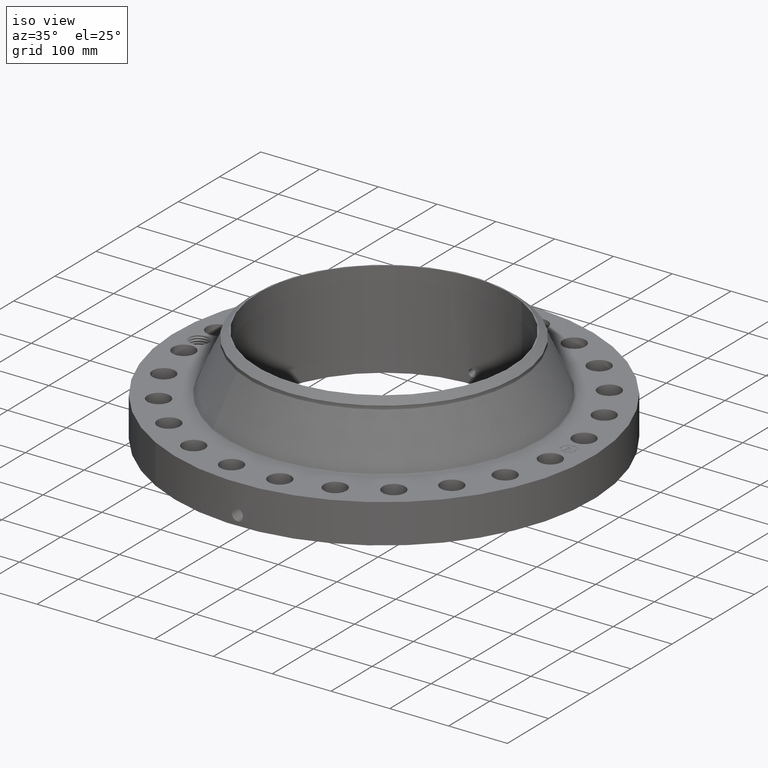
[diagram: clean part render]
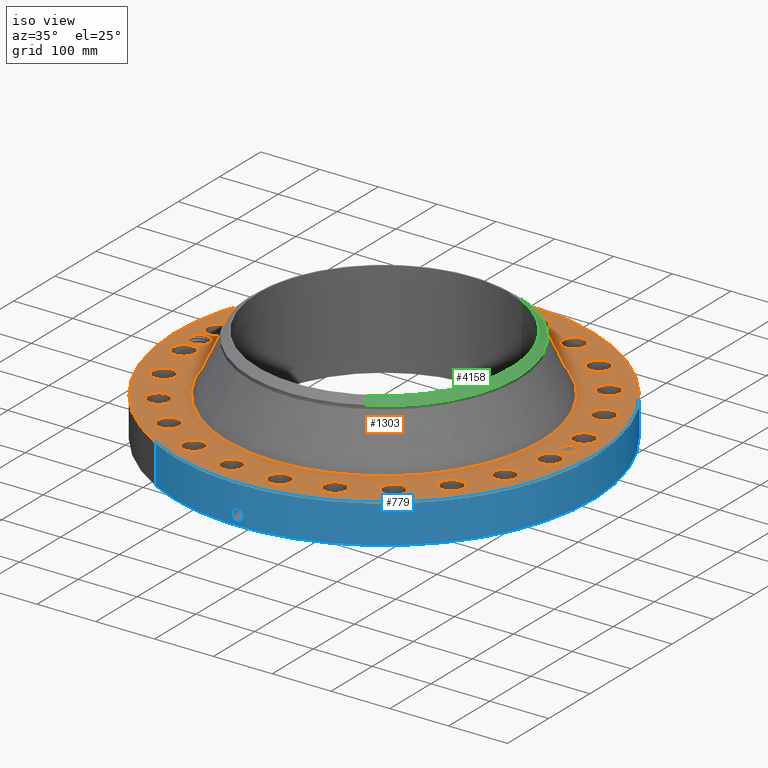
[diagram: same view with three faces highlighted in distinct colors, each labeled with its STEP entity id]
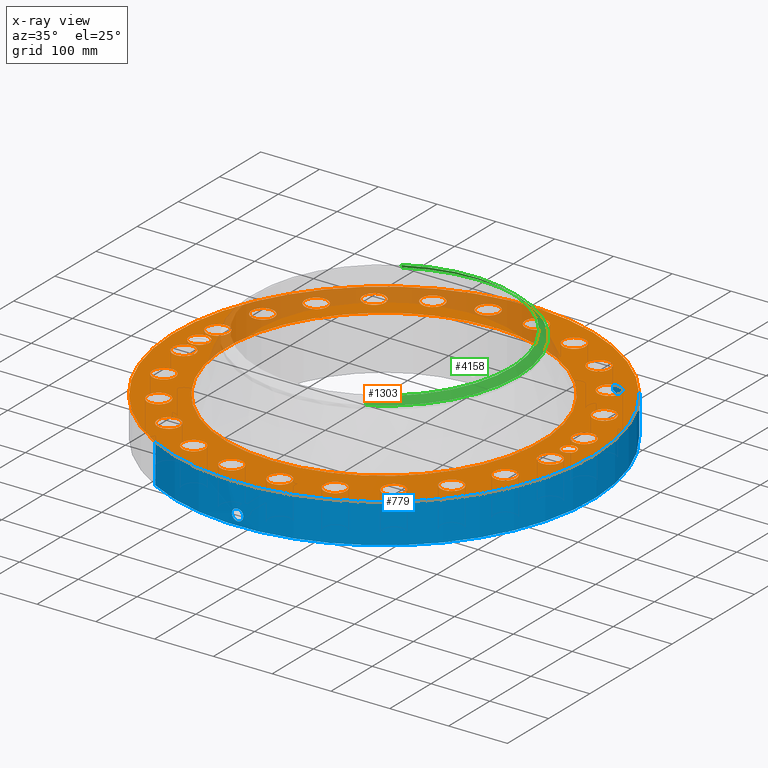
[diagram: x-ray of the same camera — body ghosted, the three highlighted faces saturated]
A machine part, iso view with three faces highlighted in distinct colors.
The next image is the same camera in x-ray (body ghosted, the three faces saturated) — at least one of them is partly hidden behind the body in this view.
Their STEP definitions:

[orange] entity #1303 — the highlighted planar face has unit normal (0, 0, -1).
#58=AXIS2_PLACEMENT_3D('Circle Axis2P3D',#56,#57,$) ;
#683=AXIS2_PLACEMENT_3D('Circle Axis2P3D',#681,#682,$) ;
#783=AXIS2_PLACEMENT_3D('Plane Axis2P3D',#780,#781,#782) ;
#819=AXIS2_PLACEMENT_3D('Circle Axis2P3D',#817,#818,$) ;
#826=AXIS2_PLACEMENT_3D('Circle Axis2P3D',#824,#825,$) ;
#837=AXIS2_PLACEMENT_3D('Circle Axis2P3D',#835,#836,$) ;
#846=AXIS2_PLACEMENT_3D('Circle Axis2P3D',#844,#845,$) ;
#855=AXIS2_PLACEMENT_3D('Circle Axis2P3D',#853,#854,$) ;
#864=AXIS2_PLACEMENT_3D('Circle Axis2P3D',#862,#863,$) ;
#873=AXIS2_PLACEMENT_3D('Circle Axis2P3D',#871,#872,$) ;
#882=AXIS2_PLACEMENT_3D('Circle Axis2P3D',#880,#881,$) ;
#891=AXIS2_PLACEMENT_3D('Circle Axis2P3D',#889,#890,$) ;
#900=AXIS2_PLACEMENT_3D('Circle Axis2P3D',#898,#899,$) ;
#909=AXIS2_PLACEMENT_3D('Circle Axis2P3D',#907,#908,$) ;
#918=AXIS2_PLACEMENT_3D('Circle Axis2P3D',#916,#917,$) ;
#927=AXIS2_PLACEMENT_3D('Circle Axis2P3D',#925,#926,$) ;
#936=AXIS2_PLACEMENT_3D('Circle Axis2P3D',#934,#935,$) ;
#945=AXIS2_PLACEMENT_3D('Circle Axis2P3D',#943,#944,$) ;
#954=AXIS2_PLACEMENT_3D('Circle Axis2P3D',#952,#953,$) ;
#963=AXIS2_PLACEMENT_3D('Circle Axis2P3D',#961,#962,$) ;
#972=AXIS2_PLACEMENT_3D('Circle Axis2P3D',#970,#971,$) ;
#981=AXIS2_PLACEMENT_3D('Circle Axis2P3D',#979,#980,$) ;
#990=AXIS2_PLACEMENT_3D('Circle Axis2P3D',#988,#989,$) ;
#999=AXIS2_PLACEMENT_3D('Circle Axis2P3D',#997,#998,$) ;
#1008=AXIS2_PLACEMENT_3D('Circle Axis2P3D',#1006,#1007,$) ;
#1017=AXIS2_PLACEMENT_3D('Circle Axis2P3D',#1015,#1016,$) ;
#1026=AXIS2_PLACEMENT_3D('Circle Axis2P3D',#1024,#1025,$) ;
#1035=AXIS2_PLACEMENT_3D('Circle Axis2P3D',#1033,#1034,$) ;
#1044=AXIS2_PLACEMENT_3D('Circle Axis2P3D',#1042,#1043,$) ;
#1053=AXIS2_PLACEMENT_3D('Circle Axis2P3D',#1051,#1052,$) ;
#1062=AXIS2_PLACEMENT_3D('Circle Axis2P3D',#1060,#1061,$) ;
#1071=AXIS2_PLACEMENT_3D('Circle Axis2P3D',#1069,#1070,$) ;
#1080=AXIS2_PLACEMENT_3D('Circle Axis2P3D',#1078,#1079,$) ;
#1089=AXIS2_PLACEMENT_3D('Circle Axis2P3D',#1087,#1088,$) ;
#1098=AXIS2_PLACEMENT_3D('Circle Axis2P3D',#1096,#1097,$) ;
#1107=AXIS2_PLACEMENT_3D('Circle Axis2P3D',#1105,#1106,$) ;
#1116=AXIS2_PLACEMENT_3D('Circle Axis2P3D',#1114,#1115,$) ;
#1125=AXIS2_PLACEMENT_3D('Circle Axis2P3D',#1123,#1124,$) ;
#1134=AXIS2_PLACEMENT_3D('Circle Axis2P3D',#1132,#1133,$) ;
#1143=AXIS2_PLACEMENT_3D('Circle Axis2P3D',#1141,#1142,$) ;
#1152=AXIS2_PLACEMENT_3D('Circle Axis2P3D',#1150,#1151,$) ;
#1161=AXIS2_PLACEMENT_3D('Circle Axis2P3D',#1159,#1160,$) ;
#1170=AXIS2_PLACEMENT_3D('Circle Axis2P3D',#1168,#1169,$) ;
#1179=AXIS2_PLACEMENT_3D('Circle Axis2P3D',#1177,#1178,$) ;
#1188=AXIS2_PLACEMENT_3D('Circle Axis2P3D',#1186,#1187,$) ;
#1197=AXIS2_PLACEMENT_3D('Circle Axis2P3D',#1195,#1196,$) ;
#1206=AXIS2_PLACEMENT_3D('Circle Axis2P3D',#1204,#1205,$) ;
#1215=AXIS2_PLACEMENT_3D('Circle Axis2P3D',#1213,#1214,$) ;
#1224=AXIS2_PLACEMENT_3D('Circle Axis2P3D',#1222,#1223,$) ;
#1233=AXIS2_PLACEMENT_3D('Circle Axis2P3D',#1231,#1232,$) ;
#1242=AXIS2_PLACEMENT_3D('Circle Axis2P3D',#1240,#1241,$) ;
#1251=AXIS2_PLACEMENT_3D('Circle Axis2P3D',#1249,#1250,$) ;
#1260=AXIS2_PLACEMENT_3D('Circle Axis2P3D',#1258,#1259,$) ;
#1269=AXIS2_PLACEMENT_3D('Circle Axis2P3D',#1267,#1268,$) ;
#1278=AXIS2_PLACEMENT_3D('Circle Axis2P3D',#1276,#1277,$) ;
#1287=AXIS2_PLACEMENT_3D('Circle Axis2P3D',#1285,#1286,$) ;
#1296=AXIS2_PLACEMENT_3D('Circle Axis2P3D',#1294,#1295,$) ;
#53=CARTESIAN_POINT('Vertex',(-6.71195754049,-12.2861558665,2.87000000001)) ;
#56=CARTESIAN_POINT('Axis2P3D Location',(0.,0.,2.87000000001)) ;
#60=CARTESIAN_POINT('Vertex',(6.71195754049,12.2861558665,2.87000000001)) ;
#681=CARTESIAN_POINT('Axis2P3D Location',(0.,0.,2.87000000001)) ;
#780=CARTESIAN_POINT('Axis2P3D Location',(0.,14.0000000001,2.87000000001)) ;
#790=CARTESIAN_POINT('Control Point',(-11.6875,0.,2.87000000001)) ;
#791=CARTESIAN_POINT('Control Point',(-11.6898638325,0.0644948882573,2.87000000001)) ;
#792=CARTESIAN_POINT('Control Point',(-11.6997958713,0.128582122111,2.87000000001)) ;
#793=CARTESIAN_POINT('Control Point',(-11.7172355436,0.191066483238,2.87000000001)) ;
#794=CARTESIAN_POINT('Control Point',(-11.7546991262,0.282013972349,2.87000000001)) ;
#795=CARTESIAN_POINT('Control Point',(-11.8073694169,0.36411728319,2.87000000001)) ;
#796=CARTESIAN_POINT('Control Point',(-11.8271741957,0.391133149727,2.87000000001)) ;
#797=CARTESIAN_POINT('Control Point',(-11.848583645,0.41681964059,2.87000000001)) ;
#798=CARTESIAN_POINT('Control Point',(-11.8714774441,0.441053201132,2.87000000001)) ;
#799=CARTESIAN_POINT('Vertex',(-11.6875,0.,2.87000000001)) ;
#801=CARTESIAN_POINT('Vertex',(-11.8714774441,0.441053201132,2.87000000001)) ;
#805=CARTESIAN_POINT('Control Point',(-11.6875,0.,2.87000000001)) ;
#806=CARTESIAN_POINT('Control Point',(-11.6898644905,-0.0645128403221,2.87000000001)) ;
#807=CARTESIAN_POINT('Control Point',(-11.6998014153,-0.128617797519,2.87000000001)) ;
#808=CARTESIAN_POINT('Control Point',(-11.717239938,-0.191095640866,2.87000000001)) ;
#809=CARTESIAN_POINT('Control Point',(-11.7547159746,-0.282071343012,2.87000000001)) ;
#810=CARTESIAN_POINT('Control Point',(-11.8073781772,-0.364153681751,2.87000000001)) ;
#811=CARTESIAN_POINT('Control Point',(-11.8272078669,-0.391195038993,2.87000000001)) ;
#812=CARTESIAN_POINT('Control Point',(-11.8486415572,-0.416899488124,2.87000000001)) ;
#813=CARTESIAN_POINT('Control Point',(-11.8715578122,-0.441144935554,2.87000000001)) ;
#814=CARTESIAN_POINT('Vertex',(-11.8715578122,-0.441144935554,2.87000000001)) ;
#817=CARTESIAN_POINT('Axis2P3D Location',(-12.375,-1.1189649382E-014,2.87000000001)) ;
#821=CARTESIAN_POINT('Vertex',(-12.9624318274,0.320915469904,2.87000000001)) ;
#824=CARTESIAN_POINT('Axis2P3D Location',(-12.375,-1.1189649382E-014,2.87000000001)) ;
#835=CARTESIAN_POINT('Axis2P3D Location',(12.2691301595,-1.61526162873,2.87000000001)) ;
#839=CARTESIAN_POINT('Vertex',(11.6109432381,-1.25569247478,2.87000000001)) ;
#841=CARTESIAN_POINT('Vertex',(12.927317081,-1.97483078268,2.87000000001)) ;
#844=CARTESIAN_POINT('Axis2P3D Location',(12.2691301595,-1.61526162873,2.87000000001)) ;
#853=CARTESIAN_POINT('Axis2P3D Location',(0.,0.,2.87000000001)) ;
#857=CARTESIAN_POINT('Vertex',(-5.07088683726,-9.2821960938,2.87000000001)) ;
#859=CARTESIAN_POINT('Vertex',(5.07088683726,9.2821960938,2.87000000001)) ;
#862=CARTESIAN_POINT('Axis2P3D Location',(0.,0.,2.87000000001)) ;
#871=CARTESIAN_POINT('Axis2P3D Location',(11.4330092149,-4.73570747554,2.87000000001)) ;
#875=CARTESIAN_POINT('Vertex',(11.9757056157,-5.25337591818,2.87000000001)) ;
#877=CARTESIAN_POINT('Vertex',(10.890312814,-4.21803903289,2.87000000001)) ;
#880=CARTESIAN_POINT('Axis2P3D Location',(11.4330092149,-4.73570747554,2.87000000001)) ;
#889=CARTESIAN_POINT('Axis2P3D Location',(9.81774758614,-7.53342268401,2.87000000001)) ;
#893=CARTESIAN_POINT('Vertex',(10.2079696036,-8.17391216647,2.87000000001)) ;
#895=CARTESIAN_POINT('Vertex',(9.42752556873,-6.89293320156,2.87000000001)) ;
#898=CARTESIAN_POINT('Axis2P3D Location',(9.81774758614,-7.53342268401,2.87000000001)) ;
#907=CARTESIAN_POINT('Axis2P3D Location',(7.53342268401,-9.81774758614,2.87000000001)) ;
#911=CARTESIAN_POINT('Vertex',(7.74457733237,-10.5374098086,2.87000000001)) ;
#913=CARTESIAN_POINT('Vertex',(7.32226803566,-9.09808536365,2.87000000001)) ;
#916=CARTESIAN_POINT('Axis2P3D Location',(7.53342268401,-9.81774758614,2.87000000001)) ;
#925=CARTESIAN_POINT('Axis2P3D Location',(4.73570747554,-11.4330092149,2.87000000001)) ;
#929=CARTESIAN_POINT('Vertex',(4.75340491451,-12.1828003862,2.87000000001)) ;
#931=CARTESIAN_POINT('Vertex',(4.71801003657,-10.6832180435,2.87000000001)) ;
#934=CARTESIAN_POINT('Axis2P3D Location',(4.73570747554,-11.4330092149,2.87000000001)) ;
#943=CARTESIAN_POINT('Axis2P3D Location',(1.61526162873,-12.2691301595,2.87000000001)) ;
#947=CARTESIAN_POINT('Vertex',(1.43829580709,-12.9979532506,2.87000000001)) ;
#949=CARTESIAN_POINT('Vertex',(1.79222745037,-11.5403070685,2.87000000001)) ;
#952=CARTESIAN_POINT('Axis2P3D Location',(1.61526162873,-12.2691301595,2.87000000001)) ;
#961=CARTESIAN_POINT('Axis2P3D Location',(-1.61526162873,-12.2691301595,2.87000000001)) ;
#965=CARTESIAN_POINT('Vertex',(-1.97483078268,-12.927317081,2.87000000001)) ;
#967=CARTESIAN_POINT('Vertex',(-1.25569247478,-11.6109432381,2.87000000001)) ;
#970=CARTESIAN_POINT('Axis2P3D Location',(-1.61526162873,-12.2691301595,2.87000000001)) ;
#979=CARTESIAN_POINT('Axis2P3D Location',(-4.73570747554,-11.4330092149,2.87000000001)) ;
#983=CARTESIAN_POINT('Vertex',(-5.25337591818,-11.9757056157,2.87000000001)) ;
#985=CARTESIAN_POINT('Vertex',(-4.21803903289,-10.890312814,2.87000000001)) ;
#988=CARTESIAN_POINT('Axis2P3D Location',(-4.73570747554,-11.4330092149,2.87000000001)) ;
#997=CARTESIAN_POINT('Axis2P3D Location',(-7.53342268401,-9.81774758614,2.87000000001)) ;
#1001=CARTESIAN_POINT('Vertex',(-8.17391216647,-10.2079696036,2.87000000001)) ;
#1003=CARTESIAN_POINT('Vertex',(-6.89293320156,-9.42752556873,2.87000000001)) ;
#1006=CARTESIAN_POINT('Axis2P3D Location',(-7.53342268401,-9.81774758614,2.87000000001)) ;
#1015=CARTESIAN_POINT('Axis2P3D Location',(-9.81774758614,-7.53342268401,2.87000000001)) ;
#1019=CARTESIAN_POINT('Vertex',(-10.5374098086,-7.74457733237,2.87000000001)) ;
#1021=CARTESIAN_POINT('Vertex',(-9.09808536365,-7.32226803566,2.87000000001)) ;
#1024=CARTESIAN_POINT('Axis2P3D Location',(-9.81774758614,-7.53342268401,2.87000000001)) ;
#1033=CARTESIAN_POINT('Axis2P3D Location',(-11.4330092149,-4.73570747554,2.87000000001)) ;
#1037=CARTESIAN_POINT('Vertex',(-12.1828003862,-4.75340491451,2.87000000001)) ;
#1039=CARTESIAN_POINT('Vertex',(-10.6832180435,-4.71801003657,2.87000000001)) ;
#1042=CARTESIAN_POINT('Axis2P3D Location',(-11.4330092149,-4.73570747554,2.87000000001)) ;
#1051=CARTESIAN_POINT('Axis2P3D Location',(-12.2691301595,-1.61526162873,2.87000000001)) ;
#1055=CARTESIAN_POINT('Vertex',(-12.9979532506,-1.43829580709,2.87000000001)) ;
#1057=CARTESIAN_POINT('Vertex',(-11.5403070685,-1.79222745037,2.87000000001)) ;
#1060=CARTESIAN_POINT('Axis2P3D Location',(-12.2691301595,-1.61526162873,2.87000000001)) ;
#1069=CARTESIAN_POINT('Axis2P3D Location',(-12.2691301595,1.61526162873,2.87000000001)) ;
#1073=CARTESIAN_POINT('Vertex',(-12.927317081,1.97483078268,2.87000000001)) ;
#1075=CARTESIAN_POINT('Vertex',(-11.6109432381,1.25569247478,2.87000000001)) ;
#1078=CARTESIAN_POINT('Axis2P3D Location',(-12.2691301595,1.61526162873,2.87000000001)) ;
#1087=CARTESIAN_POINT('Axis2P3D Location',(-11.4330092149,4.73570747554,2.87000000001)) ;
#1091=CARTESIAN_POINT('Vertex',(-11.9757056157,5.25337591818,2.87000000001)) ;
#1093=CARTESIAN_POINT('Vertex',(-10.890312814,4.21803903289,2.87000000001)) ;
#1096=CARTESIAN_POINT('Axis2P3D Location',(-11.4330092149,4.73570747554,2.87000000001)) ;
#1105=CARTESIAN_POINT('Axis2P3D Location',(-9.81774758614,7.53342268401,2.87000000001)) ;
#1109=CARTESIAN_POINT('Vertex',(-10.2079696036,8.17391216647,2.87000000001)) ;
#1111=CARTESIAN_POINT('Vertex',(-9.42752556873,6.89293320156,2.87000000001)) ;
#1114=CARTESIAN_POINT('Axis2P3D Location',(-9.81774758614,7.53342268401,2.87000000001)) ;
#1123=CARTESIAN_POINT('Axis2P3D Location',(-7.53342268401,9.81774758614,2.87000000001)) ;
#1127=CARTESIAN_POINT('Vertex',(-7.74457733237,10.5374098086,2.87000000001)) ;
#1129=CARTESIAN_POINT('Vertex',(-7.32226803566,9.09808536365,2.87000000001)) ;
#1132=CARTESIAN_POINT('Axis2P3D Location',(-7.53342268401,9.81774758614,2.87000000001)) ;
#1141=CARTESIAN_POINT('Axis2P3D Location',(-4.73570747554,11.4330092149,2.87000000001)) ;
#1145=CARTESIAN_POINT('Vertex',(-4.75340491451,12.1828003862,2.87000000001)) ;
#1147=CARTESIAN_POINT('Vertex',(-4.71801003657,10.6832180435,2.87000000001)) ;
#1150=CARTESIAN_POINT('Axis2P3D Location',(-4.73570747554,11.4330092149,2.87000000001)) ;
#1159=CARTESIAN_POINT('Axis2P3D Location',(-1.61526162873,12.2691301595,2.87000000001)) ;
#1163=CARTESIAN_POINT('Vertex',(-1.43829580709,12.9979532506,2.87000000001)) ;
#1165=CARTESIAN_POINT('Vertex',(-1.79222745037,11.5403070685,2.87000000001)) ;
#1168=CARTESIAN_POINT('Axis2P3D Location',(-1.61526162873,12.2691301595,2.87000000001)) ;
#1177=CARTESIAN_POINT('Axis2P3D Location',(1.61526162873,12.2691301595,2.87000000001)) ;
#1181=CARTESIAN_POINT('Vertex',(1.97483078268,12.927317081,2.87000000001)) ;
#1183=CARTESIAN_POINT('Vertex',(1.25569247478,11.6109432381,2.87000000001)) ;
#1186=CARTESIAN_POINT('Axis2P3D Location',(1.61526162873,12.2691301595,2.87000000001)) ;
#1195=CARTESIAN_POINT('Axis2P3D Location',(4.73570747554,11.4330092149,2.87000000001)) ;
#1199=CARTESIAN_POINT('Vertex',(5.25337591818,11.9757056157,2.87000000001)) ;
#1201=CARTESIAN_POINT('Vertex',(4.21803903289,10.890312814,2.87000000001)) ;
#1204=CARTESIAN_POINT('Axis2P3D Location',(4.73570747554,11.4330092149,2.87000000001)) ;
#1213=CARTESIAN_POINT('Axis2P3D Location',(7.53342268401,9.81774758614,2.87000000001)) ;
#1217=CARTESIAN_POINT('Vertex',(8.17391216647,10.2079696036,2.87000000001)) ;
#1219=CARTESIAN_POINT('Vertex',(6.89293320156,9.42752556873,2.87000000001)) ;
#1222=CARTESIAN_POINT('Axis2P3D Location',(7.53342268401,9.81774758614,2.87000000001)) ;
#1231=CARTESIAN_POINT('Axis2P3D Location',(9.81774758614,7.53342268401,2.87000000001)) ;
#1235=CARTESIAN_POINT('Vertex',(10.5374098086,7.74457733237,2.87000000001)) ;
#1237=CARTESIAN_POINT('Vertex',(9.09808536365,7.32226803566,2.87000000001)) ;
#1240=CARTESIAN_POINT('Axis2P3D Location',(9.81774758614,7.53342268401,2.87000000001)) ;
#1249=CARTESIAN_POINT('Axis2P3D Location',(11.4330092149,4.73570747554,2.87000000001)) ;
#1253=CARTESIAN_POINT('Vertex',(12.1828003862,4.75340491451,2.87000000001)) ;
#1255=CARTESIAN_POINT('Vertex',(10.6832180435,4.71801003657,2.87000000001)) ;
#1258=CARTESIAN_POINT('Axis2P3D Location',(11.4330092149,4.73570747554,2.87000000001)) ;
#1267=CARTESIAN_POINT('Axis2P3D Location',(12.2691301595,1.61526162873,2.87000000001)) ;
#1271=CARTESIAN_POINT('Vertex',(12.9979532506,1.43829580709,2.87000000001)) ;
#1273=CARTESIAN_POINT('Vertex',(11.5403070685,1.79222745037,2.87000000001)) ;
#1276=CARTESIAN_POINT('Axis2P3D Location',(12.2691301595,1.61526162873,2.87000000001)) ;
#1285=CARTESIAN_POINT('Axis2P3D Location',(12.375,0.,2.87000000001)) ;
#1289=CARTESIAN_POINT('Vertex',(12.375,0.499999995002,2.87000000001)) ;
#1291=CARTESIAN_POINT('Vertex',(12.375,-0.499999995002,2.87000000001)) ;
#1294=CARTESIAN_POINT('Axis2P3D Location',(12.375,0.,2.87000000001)) ;
#57=DIRECTION('Axis2P3D Direction',(0.,0.,-0.0393700787402)) ;
#682=DIRECTION('Axis2P3D Direction',(0.,0.,-0.0393700787402)) ;
#781=DIRECTION('Axis2P3D Direction',(0.,0.,-0.0393700787402)) ;
#782=DIRECTION('Axis2P3D XDirection',(0.0393700787402,0.,0.)) ;
#818=DIRECTION('Axis2P3D Direction',(0.,0.,-0.0393700787402)) ;
#825=DIRECTION('Axis2P3D Direction',(0.,0.,-0.0393700787402)) ;
#836=DIRECTION('Axis2P3D Direction',(0.,0.,-0.0393700787402)) ;
#845=DIRECTION('Axis2P3D Direction',(0.,0.,-0.0393700787402)) ;
#854=DIRECTION('Axis2P3D Direction',(0.,0.,-0.0393700787402)) ;
#863=DIRECTION('Axis2P3D Direction',(0.,0.,-0.0393700787402)) ;
#872=DIRECTION('Axis2P3D Direction',(0.,0.,-0.0393700787402)) ;
#881=DIRECTION('Axis2P3D Direction',(0.,0.,-0.0393700787402)) ;
#890=DIRECTION('Axis2P3D Direction',(0.,0.,-0.0393700787402)) ;
#899=DIRECTION('Axis2P3D Direction',(0.,0.,-0.0393700787402)) ;
#908=DIRECTION('Axis2P3D Direction',(0.,0.,-0.0393700787402)) ;
#917=DIRECTION('Axis2P3D Direction',(0.,0.,-0.0393700787402)) ;
#926=DIRECTION('Axis2P3D Direction',(0.,0.,-0.0393700787402)) ;
#935=DIRECTION('Axis2P3D Direction',(0.,0.,-0.0393700787402)) ;
#944=DIRECTION('Axis2P3D Direction',(0.,0.,-0.0393700787402)) ;
#953=DIRECTION('Axis2P3D Direction',(0.,0.,-0.0393700787402)) ;
#962=DIRECTION('Axis2P3D Direction',(0.,0.,-0.0393700787402)) ;
#971=DIRECTION('Axis2P3D Direction',(0.,0.,-0.0393700787402)) ;
#980=DIRECTION('Axis2P3D Direction',(0.,0.,-0.0393700787402)) ;
#989=DIRECTION('Axis2P3D Direction',(0.,0.,-0.0393700787402)) ;
#998=DIRECTION('Axis2P3D Direction',(0.,0.,-0.0393700787402)) ;
#1007=DIRECTION('Axis2P3D Direction',(0.,0.,-0.0393700787402)) ;
#1016=DIRECTION('Axis2P3D Direction',(0.,0.,-0.0393700787402)) ;
#1025=DIRECTION('Axis2P3D Direction',(0.,0.,-0.0393700787402)) ;
#1034=DIRECTION('Axis2P3D Direction',(0.,0.,-0.0393700787402)) ;
#1043=DIRECTION('Axis2P3D Direction',(0.,0.,-0.0393700787402)) ;
#1052=DIRECTION('Axis2P3D Direction',(0.,0.,-0.0393700787402)) ;
#1061=DIRECTION('Axis2P3D Direction',(0.,0.,-0.0393700787402)) ;
#1070=DIRECTION('Axis2P3D Direction',(0.,0.,-0.0393700787402)) ;
#1079=DIRECTION('Axis2P3D Direction',(0.,0.,-0.0393700787402)) ;
#1088=DIRECTION('Axis2P3D Direction',(0.,0.,-0.0393700787402)) ;
#1097=DIRECTION('Axis2P3D Direction',(0.,0.,-0.0393700787402)) ;
#1106=DIRECTION('Axis2P3D Direction',(0.,0.,-0.0393700787402)) ;
#1115=DIRECTION('Axis2P3D Direction',(0.,0.,-0.0393700787402)) ;
#1124=DIRECTION('Axis2P3D Direction',(0.,0.,-0.0393700787402)) ;
#1133=DIRECTION('Axis2P3D Direction',(0.,0.,-0.0393700787402)) ;
#1142=DIRECTION('Axis2P3D Direction',(0.,0.,-0.0393700787402)) ;
#1151=DIRECTION('Axis2P3D Direction',(0.,0.,-0.0393700787402)) ;
#1160=DIRECTION('Axis2P3D Direction',(0.,0.,-0.0393700787402)) ;
#1169=DIRECTION('Axis2P3D Direction',(0.,0.,-0.0393700787402)) ;
#1178=DIRECTION('Axis2P3D Direction',(0.,0.,-0.0393700787402)) ;
#1187=DIRECTION('Axis2P3D Direction',(0.,0.,-0.0393700787402)) ;
#1196=DIRECTION('Axis2P3D Direction',(0.,0.,-0.0393700787402)) ;
#1205=DIRECTION('Axis2P3D Direction',(0.,0.,-0.0393700787402)) ;
#1214=DIRECTION('Axis2P3D Direction',(0.,0.,-0.0393700787402)) ;
#1223=DIRECTION('Axis2P3D Direction',(0.,0.,-0.0393700787402)) ;
#1232=DIRECTION('Axis2P3D Direction',(0.,0.,-0.0393700787402)) ;
#1241=DIRECTION('Axis2P3D Direction',(0.,0.,-0.0393700787402)) ;
#1250=DIRECTION('Axis2P3D Direction',(0.,0.,-0.0393700787402)) ;
#1259=DIRECTION('Axis2P3D Direction',(0.,0.,-0.0393700787402)) ;
#1268=DIRECTION('Axis2P3D Direction',(0.,0.,-0.0393700787402)) ;
#1277=DIRECTION('Axis2P3D Direction',(0.,0.,-0.0393700787402)) ;
#1286=DIRECTION('Axis2P3D Direction',(0.,0.,-0.0393700787402)) ;
#1295=DIRECTION('Axis2P3D Direction',(0.,0.,-0.0393700787402)) ;
#786=ORIENTED_EDGE('',*,*,#685,.F.) ;
#787=ORIENTED_EDGE('',*,*,#62,.F.) ;
#830=ORIENTED_EDGE('',*,*,#803,.F.) ;
#831=ORIENTED_EDGE('',*,*,#816,.T.) ;
#832=ORIENTED_EDGE('',*,*,#823,.T.) ;
#833=ORIENTED_EDGE('',*,*,#828,.T.) ;
#850=ORIENTED_EDGE('',*,*,#843,.T.) ;
#851=ORIENTED_EDGE('',*,*,#848,.T.) ;
#868=ORIENTED_EDGE('',*,*,#861,.T.) ;
#869=ORIENTED_EDGE('',*,*,#866,.T.) ;
#886=ORIENTED_EDGE('',*,*,#879,.T.) ;
#887=ORIENTED_EDGE('',*,*,#884,.T.) ;
#904=ORIENTED_EDGE('',*,*,#897,.T.) ;
#905=ORIENTED_EDGE('',*,*,#902,.T.) ;
#922=ORIENTED_EDGE('',*,*,#915,.T.) ;
#923=ORIENTED_EDGE('',*,*,#920,.T.) ;
#940=ORIENTED_EDGE('',*,*,#933,.T.) ;
#941=ORIENTED_EDGE('',*,*,#938,.T.) ;
#958=ORIENTED_EDGE('',*,*,#951,.T.) ;
#959=ORIENTED_EDGE('',*,*,#956,.T.) ;
#976=ORIENTED_EDGE('',*,*,#969,.T.) ;
#977=ORIENTED_EDGE('',*,*,#974,.T.) ;
#994=ORIENTED_EDGE('',*,*,#987,.T.) ;
#995=ORIENTED_EDGE('',*,*,#992,.T.) ;
#1012=ORIENTED_EDGE('',*,*,#1005,.T.) ;
#1013=ORIENTED_EDGE('',*,*,#1010,.T.) ;
#1030=ORIENTED_EDGE('',*,*,#1023,.T.) ;
#1031=ORIENTED_EDGE('',*,*,#1028,.T.) ;
#1048=ORIENTED_EDGE('',*,*,#1041,.T.) ;
#1049=ORIENTED_EDGE('',*,*,#1046,.T.) ;
#1066=ORIENTED_EDGE('',*,*,#1059,.T.) ;
#1067=ORIENTED_EDGE('',*,*,#1064,.T.) ;
#1084=ORIENTED_EDGE('',*,*,#1077,.T.) ;
#1085=ORIENTED_EDGE('',*,*,#1082,.T.) ;
#1102=ORIENTED_EDGE('',*,*,#1095,.T.) ;
#1103=ORIENTED_EDGE('',*,*,#1100,.T.) ;
#1120=ORIENTED_EDGE('',*,*,#1113,.T.) ;
#1121=ORIENTED_EDGE('',*,*,#1118,.T.) ;
#1138=ORIENTED_EDGE('',*,*,#1131,.T.) ;
#1139=ORIENTED_EDGE('',*,*,#1136,.T.) ;
#1156=ORIENTED_EDGE('',*,*,#1149,.T.) ;
#1157=ORIENTED_EDGE('',*,*,#1154,.T.) ;
#1174=ORIENTED_EDGE('',*,*,#1167,.T.) ;
#1175=ORIENTED_EDGE('',*,*,#1172,.T.) ;
#1192=ORIENTED_EDGE('',*,*,#1185,.T.) ;
#1193=ORIENTED_EDGE('',*,*,#1190,.T.) ;
#1210=ORIENTED_EDGE('',*,*,#1203,.T.) ;
#1211=ORIENTED_EDGE('',*,*,#1208,.T.) ;
#1228=ORIENTED_EDGE('',*,*,#1221,.T.) ;
#1229=ORIENTED_EDGE('',*,*,#1226,.T.) ;
#1246=ORIENTED_EDGE('',*,*,#1239,.T.) ;
#1247=ORIENTED_EDGE('',*,*,#1244,.T.) ;
#1264=ORIENTED_EDGE('',*,*,#1257,.T.) ;
#1265=ORIENTED_EDGE('',*,*,#1262,.T.) ;
#1282=ORIENTED_EDGE('',*,*,#1275,.T.) ;
#1283=ORIENTED_EDGE('',*,*,#1280,.T.) ;
#1300=ORIENTED_EDGE('',*,*,#1293,.T.) ;
#1301=ORIENTED_EDGE('',*,*,#1298,.T.) ;
#834=FACE_BOUND('',#829,.T.) ;
#852=FACE_BOUND('',#849,.T.) ;
#870=FACE_BOUND('',#867,.T.) ;
#888=FACE_BOUND('',#885,.T.) ;
#906=FACE_BOUND('',#903,.T.) ;
#924=FACE_BOUND('',#921,.T.) ;
#942=FACE_BOUND('',#939,.T.) ;
#960=FACE_BOUND('',#957,.T.) ;
#978=FACE_BOUND('',#975,.T.) ;
#996=FACE_BOUND('',#993,.T.) ;
#1014=FACE_BOUND('',#1011,.T.) ;
#1032=FACE_BOUND('',#1029,.T.) ;
#1050=FACE_BOUND('',#1047,.T.) ;
#1068=FACE_BOUND('',#1065,.T.) ;
#1086=FACE_BOUND('',#1083,.T.) ;
#1104=FACE_BOUND('',#1101,.T.) ;
#1122=FACE_BOUND('',#1119,.T.) ;
#1140=FACE_BOUND('',#1137,.T.) ;
#1158=FACE_BOUND('',#1155,.T.) ;
#1176=FACE_BOUND('',#1173,.T.) ;
#1194=FACE_BOUND('',#1191,.T.) ;
#1212=FACE_BOUND('',#1209,.T.) ;
#1230=FACE_BOUND('',#1227,.T.) ;
#1248=FACE_BOUND('',#1245,.T.) ;
#1266=FACE_BOUND('',#1263,.T.) ;
#1284=FACE_BOUND('',#1281,.T.) ;
#1302=FACE_BOUND('',#1299,.T.) ;
#1303=ADVANCED_FACE('PartBody',(#788,#834,#852,#870,#888,#906,#924,#942,#960,#978,#996,#1014,#1032,#1050,#1068,#1086,#1104,#1122,#1140,#1158,#1176,#1194,#1212,#1230,#1248,#1266,#1284,#1302),#784,.F.) ;
#789=B_SPLINE_CURVE_WITH_KNOTS('',5,(#790,#791,#792,#793,#794,#795,#796,#797,#798),.UNSPECIFIED.,.F.,.U.,(6,3,6),(0.,11.2735220853,17.1736861329),.UNSPECIFIED.) ;
#804=B_SPLINE_CURVE_WITH_KNOTS('',5,(#805,#806,#807,#808,#809,#810,#811,#812,#813),.UNSPECIFIED.,.F.,.U.,(6,3,6),(0.,11.2766600545,17.1916849098),.UNSPECIFIED.) ;
#59=CIRCLE('generated circle',#58,14.0000000001) ;
#684=CIRCLE('generated circle',#683,14.0000000001) ;
#820=CIRCLE('generated circle',#819,0.669375000003) ;
#827=CIRCLE('generated circle',#826,0.669375000003) ;
#838=CIRCLE('generated circle',#837,0.750000000003) ;
#847=CIRCLE('generated circle',#846,0.750000000003) ;
#856=CIRCLE('generated circle',#855,10.5770060811) ;
#865=CIRCLE('generated circle',#864,10.5770060811) ;
#874=CIRCLE('generated circle',#873,0.750000000003) ;
#883=CIRCLE('generated circle',#882,0.750000000003) ;
#892=CIRCLE('generated circle',#891,0.750000000003) ;
#901=CIRCLE('generated circle',#900,0.750000000003) ;
#910=CIRCLE('generated circle',#909,0.750000000003) ;
#919=CIRCLE('generated circle',#918,0.750000000003) ;
#928=CIRCLE('generated circle',#927,0.750000000003) ;
#937=CIRCLE('generated circle',#936,0.750000000003) ;
#946=CIRCLE('generated circle',#945,0.750000000003) ;
#955=CIRCLE('generated circle',#954,0.750000000003) ;
#964=CIRCLE('generated circle',#963,0.750000000003) ;
#973=CIRCLE('generated circle',#972,0.750000000003) ;
#982=CIRCLE('generated circle',#981,0.750000000003) ;
#991=CIRCLE('generated circle',#990,0.750000000003) ;
#1000=CIRCLE('generated circle',#999,0.750000000003) ;
#1009=CIRCLE('generated circle',#1008,0.750000000003) ;
#1018=CIRCLE('generated circle',#1017,0.750000000003) ;
#1027=CIRCLE('generated circle',#1026,0.750000000003) ;
#1036=CIRCLE('generated circle',#1035,0.750000000003) ;
#1045=CIRCLE('generated circle',#1044,0.750000000003) ;
#1054=CIRCLE('generated circle',#1053,0.750000000003) ;
#1063=CIRCLE('generated circle',#1062,0.750000000003) ;
#1072=CIRCLE('generated circle',#1071,0.750000000003) ;
#1081=CIRCLE('generated circle',#1080,0.750000000003) ;
#1090=CIRCLE('generated circle',#1089,0.750000000003) ;
#1099=CIRCLE('generated circle',#1098,0.750000000003) ;
#1108=CIRCLE('generated circle',#1107,0.750000000003) ;
#1117=CIRCLE('generated circle',#1116,0.750000000003) ;
#1126=CIRCLE('generated circle',#1125,0.750000000003) ;
#1135=CIRCLE('generated circle',#1134,0.750000000003) ;
#1144=CIRCLE('generated circle',#1143,0.750000000003) ;
#1153=CIRCLE('generated circle',#1152,0.750000000003) ;
#1162=CIRCLE('generated circle',#1161,0.750000000003) ;
#1171=CIRCLE('generated circle',#1170,0.750000000003) ;
#1180=CIRCLE('generated circle',#1179,0.750000000003) ;
#1189=CIRCLE('generated circle',#1188,0.750000000003) ;
#1198=CIRCLE('generated circle',#1197,0.750000000003) ;
#1207=CIRCLE('generated circle',#1206,0.750000000003) ;
#1216=CIRCLE('generated circle',#1215,0.750000000003) ;
#1225=CIRCLE('generated circle',#1224,0.750000000003) ;
#1234=CIRCLE('generated circle',#1233,0.750000000003) ;
#1243=CIRCLE('generated circle',#1242,0.750000000003) ;
#1252=CIRCLE('generated circle',#1251,0.750000000003) ;
#1261=CIRCLE('generated circle',#1260,0.750000000003) ;
#1270=CIRCLE('generated circle',#1269,0.750000000003) ;
#1279=CIRCLE('generated circle',#1278,0.750000000003) ;
#1288=CIRCLE('generated circle',#1287,0.499999995002) ;
#1297=CIRCLE('generated circle',#1296,0.499999995002) ;
#62=EDGE_CURVE('',#54,#61,#59,.T.) ;
#685=EDGE_CURVE('',#61,#54,#684,.T.) ;
#803=EDGE_CURVE('',#800,#802,#789,.T.) ;
#816=EDGE_CURVE('',#800,#815,#804,.T.) ;
#823=EDGE_CURVE('',#815,#822,#820,.T.) ;
#828=EDGE_CURVE('',#822,#802,#827,.T.) ;
#843=EDGE_CURVE('',#840,#842,#838,.T.) ;
#848=EDGE_CURVE('',#842,#840,#847,.T.) ;
#861=EDGE_CURVE('',#858,#860,#856,.T.) ;
#866=EDGE_CURVE('',#860,#858,#865,.T.) ;
#879=EDGE_CURVE('',#876,#878,#874,.T.) ;
#884=EDGE_CURVE('',#878,#876,#883,.T.) ;
#897=EDGE_CURVE('',#894,#896,#892,.T.) ;
#902=EDGE_CURVE('',#896,#894,#901,.T.) ;
#915=EDGE_CURVE('',#912,#914,#910,.T.) ;
#920=EDGE_CURVE('',#914,#912,#919,.T.) ;
#933=EDGE_CURVE('',#930,#932,#928,.T.) ;
#938=EDGE_CURVE('',#932,#930,#937,.T.) ;
#951=EDGE_CURVE('',#948,#950,#946,.T.) ;
#956=EDGE_CURVE('',#950,#948,#955,.T.) ;
#969=EDGE_CURVE('',#966,#968,#964,.T.) ;
#974=EDGE_CURVE('',#968,#966,#973,.T.) ;
#987=EDGE_CURVE('',#984,#986,#982,.T.) ;
#992=EDGE_CURVE('',#986,#984,#991,.T.) ;
#1005=EDGE_CURVE('',#1002,#1004,#1000,.T.) ;
#1010=EDGE_CURVE('',#1004,#1002,#1009,.T.) ;
#1023=EDGE_CURVE('',#1020,#1022,#1018,.T.) ;
#1028=EDGE_CURVE('',#1022,#1020,#1027,.T.) ;
#1041=EDGE_CURVE('',#1038,#1040,#1036,.T.) ;
#1046=EDGE_CURVE('',#1040,#1038,#1045,.T.) ;
#1059=EDGE_CURVE('',#1056,#1058,#1054,.T.) ;
#1064=EDGE_CURVE('',#1058,#1056,#1063,.T.) ;
#1077=EDGE_CURVE('',#1074,#1076,#1072,.T.) ;
#1082=EDGE_CURVE('',#1076,#1074,#1081,.T.) ;
#1095=EDGE_CURVE('',#1092,#1094,#1090,.T.) ;
#1100=EDGE_CURVE('',#1094,#1092,#1099,.T.) ;
#1113=EDGE_CURVE('',#1110,#1112,#1108,.T.) ;
#1118=EDGE_CURVE('',#1112,#1110,#1117,.T.) ;
#1131=EDGE_CURVE('',#1128,#1130,#1126,.T.) ;
#1136=EDGE_CURVE('',#1130,#1128,#1135,.T.) ;
#1149=EDGE_CURVE('',#1146,#1148,#1144,.T.) ;
#1154=EDGE_CURVE('',#1148,#1146,#1153,.T.) ;
#1167=EDGE_CURVE('',#1164,#1166,#1162,.T.) ;
#1172=EDGE_CURVE('',#1166,#1164,#1171,.T.) ;
#1185=EDGE_CURVE('',#1182,#1184,#1180,.T.) ;
#1190=EDGE_CURVE('',#1184,#1182,#1189,.T.) ;
#1203=EDGE_CURVE('',#1200,#1202,#1198,.T.) ;
#1208=EDGE_CURVE('',#1202,#1200,#1207,.T.) ;
#1221=EDGE_CURVE('',#1218,#1220,#1216,.T.) ;
#1226=EDGE_CURVE('',#1220,#1218,#1225,.T.) ;
#1239=EDGE_CURVE('',#1236,#1238,#1234,.T.) ;
#1244=EDGE_CURVE('',#1238,#1236,#1243,.T.) ;
#1257=EDGE_CURVE('',#1254,#1256,#1252,.T.) ;
#1262=EDGE_CURVE('',#1256,#1254,#1261,.T.) ;
#1275=EDGE_CURVE('',#1272,#1274,#1270,.T.) ;
#1280=EDGE_CURVE('',#1274,#1272,#1279,.T.) ;
#1293=EDGE_CURVE('',#1290,#1292,#1288,.T.) ;
#1298=EDGE_CURVE('',#1292,#1290,#1297,.T.) ;
#785=EDGE_LOOP('',(#786,#787)) ;
#829=EDGE_LOOP('',(#830,#831,#832,#833)) ;
#849=EDGE_LOOP('',(#850,#851)) ;
#867=EDGE_LOOP('',(#868,#869)) ;
#885=EDGE_LOOP('',(#886,#887)) ;
#903=EDGE_LOOP('',(#904,#905)) ;
#921=EDGE_LOOP('',(#922,#923)) ;
#939=EDGE_LOOP('',(#940,#941)) ;
#957=EDGE_LOOP('',(#958,#959)) ;
#975=EDGE_LOOP('',(#976,#977)) ;
#993=EDGE_LOOP('',(#994,#995)) ;
#1011=EDGE_LOOP('',(#1012,#1013)) ;
#1029=EDGE_LOOP('',(#1030,#1031)) ;
#1047=EDGE_LOOP('',(#1048,#1049)) ;
#1065=EDGE_LOOP('',(#1066,#1067)) ;
#1083=EDGE_LOOP('',(#1084,#1085)) ;
#1101=EDGE_LOOP('',(#1102,#1103)) ;
#1119=EDGE_LOOP('',(#1120,#1121)) ;
#1137=EDGE_LOOP('',(#1138,#1139)) ;
#1155=EDGE_LOOP('',(#1156,#1157)) ;
#1173=EDGE_LOOP('',(#1174,#1175)) ;
#1191=EDGE_LOOP('',(#1192,#1193)) ;
#1209=EDGE_LOOP('',(#1210,#1211)) ;
#1227=EDGE_LOOP('',(#1228,#1229)) ;
#1245=EDGE_LOOP('',(#1246,#1247)) ;
#1263=EDGE_LOOP('',(#1264,#1265)) ;
#1281=EDGE_LOOP('',(#1282,#1283)) ;
#1299=EDGE_LOOP('',(#1300,#1301)) ;
#788=FACE_OUTER_BOUND('',#785,.T.) ;
#784=PLANE('',#783) ;
#54=VERTEX_POINT('',#53) ;
#61=VERTEX_POINT('',#60) ;
#800=VERTEX_POINT('',#799) ;
#802=VERTEX_POINT('',#801) ;
#815=VERTEX_POINT('',#814) ;
#822=VERTEX_POINT('',#821) ;
#840=VERTEX_POINT('',#839) ;
#842=VERTEX_POINT('',#841) ;
#858=VERTEX_POINT('',#857) ;
#860=VERTEX_POINT('',#859) ;
#876=VERTEX_POINT('',#875) ;
#878=VERTEX_POINT('',#877) ;
#894=VERTEX_POINT('',#893) ;
#896=VERTEX_POINT('',#895) ;
#912=VERTEX_POINT('',#911) ;
#914=VERTEX_POINT('',#913) ;
#930=VERTEX_POINT('',#929) ;
#932=VERTEX_POINT('',#931) ;
#948=VERTEX_POINT('',#947) ;
#950=VERTEX_POINT('',#949) ;
#966=VERTEX_POINT('',#965) ;
#968=VERTEX_POINT('',#967) ;
#984=VERTEX_POINT('',#983) ;
#986=VERTEX_POINT('',#985) ;
#1002=VERTEX_POINT('',#1001) ;
#1004=VERTEX_POINT('',#1003) ;
#1020=VERTEX_POINT('',#1019) ;
#1022=VERTEX_POINT('',#1021) ;
#1038=VERTEX_POINT('',#1037) ;
#1040=VERTEX_POINT('',#1039) ;
#1056=VERTEX_POINT('',#1055) ;
#1058=VERTEX_POINT('',#1057) ;
#1074=VERTEX_POINT('',#1073) ;
#1076=VERTEX_POINT('',#1075) ;
#1092=VERTEX_POINT('',#1091) ;
#1094=VERTEX_POINT('',#1093) ;
#1110=VERTEX_POINT('',#1109) ;
#1112=VERTEX_POINT('',#1111) ;
#1128=VERTEX_POINT('',#1127) ;
#1130=VERTEX_POINT('',#1129) ;
#1146=VERTEX_POINT('',#1145) ;
#1148=VERTEX_POINT('',#1147) ;
#1164=VERTEX_POINT('',#1163) ;
#1166=VERTEX_POINT('',#1165) ;
#1182=VERTEX_POINT('',#1181) ;
#1184=VERTEX_POINT('',#1183) ;
#1200=VERTEX_POINT('',#1199) ;
#1202=VERTEX_POINT('',#1201) ;
#1218=VERTEX_POINT('',#1217) ;
#1220=VERTEX_POINT('',#1219) ;
#1236=VERTEX_POINT('',#1235) ;
#1238=VERTEX_POINT('',#1237) ;
#1254=VERTEX_POINT('',#1253) ;
#1256=VERTEX_POINT('',#1255) ;
#1272=VERTEX_POINT('',#1271) ;
#1274=VERTEX_POINT('',#1273) ;
#1290=VERTEX_POINT('',#1289) ;
#1292=VERTEX_POINT('',#1291) ;

[blue] entity #779 — the highlighted cylindrical surface (partial cylindrical patch) has radius 355.6 mm, axis along (0, 0, -1).
#38=AXIS2_PLACEMENT_3D('Cylinder Axis2P3D',#35,#36,#37) ;
#169=AXIS2_PLACEMENT_3D('Circle Axis2P3D',#167,#168,$) ;
#683=AXIS2_PLACEMENT_3D('Circle Axis2P3D',#681,#682,$) ;
#35=CARTESIAN_POINT('Axis2P3D Location',(0.,0.,3.50000000001)) ;
#44=CARTESIAN_POINT('Vertex',(-6.71195754049,-12.2861558665,0.250000000001)) ;
#46=CARTESIAN_POINT('Vertex',(6.71195754049,12.2861558665,0.250000000001)) ;
#49=CARTESIAN_POINT('Line Origine',(-6.71195754049,-12.2861558665,1.56000000001)) ;
#53=CARTESIAN_POINT('Vertex',(-6.71195754049,-12.2861558665,2.87000000001)) ;
#60=CARTESIAN_POINT('Vertex',(6.71195754049,12.2861558665,2.87000000001)) ;
#63=CARTESIAN_POINT('Line Origine',(6.71195754049,12.2861558665,1.56000000001)) ;
#167=CARTESIAN_POINT('Axis2P3D Location',(0.,0.,0.250000000001)) ;
#681=CARTESIAN_POINT('Axis2P3D Location',(0.,0.,2.87000000001)) ;
#693=CARTESIAN_POINT('Control Point',(0.000716127866797,-13.9999999817,1.2941184611)) ;
#694=CARTESIAN_POINT('Control Point',(0.0190756921834,-13.9999990426,1.29408137462)) ;
#695=CARTESIAN_POINT('Control Point',(0.0374320289473,-13.9999617001,1.29261239076)) ;
#696=CARTESIAN_POINT('Control Point',(0.0555635768002,-13.9998897385,1.28972942871)) ;
#697=CARTESIAN_POINT('Vertex',(0.000715744029722,-13.9999999818,1.29411851041)) ;
#699=CARTESIAN_POINT('Vertex',(0.0555546444298,-13.9998900267,1.28973086744)) ;
#703=CARTESIAN_POINT('Control Point',(0.0555545482502,-13.9998897743,1.28973031747)) ;
#704=CARTESIAN_POINT('Control Point',(0.0958936325302,-13.9997297003,1.28526514862)) ;
#705=CARTESIAN_POINT('Control Point',(0.135581443757,-13.999391176,1.27345856191)) ;
#706=CARTESIAN_POINT('Control Point',(0.172124900836,-13.9989418536,1.25510326735)) ;
#707=CARTESIAN_POINT('Vertex',(0.172124900836,-13.9989418536,1.25510326735)) ;
#711=CARTESIAN_POINT('Control Point',(0.030921544336,-13.9999658521,0.531182270677)) ;
#712=CARTESIAN_POINT('Control Point',(0.100166440121,-13.9998129118,0.539950593386)) ;
#713=CARTESIAN_POINT('Control Point',(0.167079236946,-13.9992370071,0.564143778958)) ;
#714=CARTESIAN_POINT('Control Point',(0.226861954535,-13.9983036339,0.602946396931)) ;
#715=CARTESIAN_POINT('Control Point',(0.299410381854,-13.9968606612,0.676992644412)) ;
#716=CARTESIAN_POINT('Control Point',(0.344252870487,-13.9957762927,0.767303575653)) ;
#717=CARTESIAN_POINT('Control Point',(0.355712957507,-13.9954842685,0.798010937824)) ;
#718=CARTESIAN_POINT('Control Point',(0.37423029426,-13.9950011289,0.869287899565)) ;
#719=CARTESIAN_POINT('Control Point',(0.375902035582,-13.9949509829,0.942614532189)) ;
#720=CARTESIAN_POINT('Control Point',(0.371520169528,-13.9950715435,0.983222785292)) ;
#721=CARTESIAN_POINT('Control Point',(0.349038329223,-13.9956736807,1.07571738045)) ;
#722=CARTESIAN_POINT('Control Point',(0.299568240057,-13.9968425287,1.15711544893)) ;
#723=CARTESIAN_POINT('Control Point',(0.263036001539,-13.9976212517,1.19806543943)) ;
#724=CARTESIAN_POINT('Control Point',(0.219778115206,-13.9983559304,1.2311676831)) ;
#725=CARTESIAN_POINT('Control Point',(0.172124900836,-13.9989418536,1.25510326735)) ;
#726=CARTESIAN_POINT('Vertex',(0.0309215443361,-13.9999658521,0.531182270677)) ;
#730=CARTESIAN_POINT('Control Point',(0.030921544336,-13.9999658521,0.531182270677)) ;
#731=CARTESIAN_POINT('Control Point',(0.0206093649101,-13.9999886285,0.530873555988)) ;
#732=CARTESIAN_POINT('Control Point',(0.0102899488199,-14.0000000021,0.530937862641)) ;
#733=CARTESIAN_POINT('Control Point',(-2.72878356816E-006,-14.0000000001,0.531374667806)) ;
#734=CARTESIAN_POINT('Vertex',(-2.7287835439E-006,-14.0000000001,0.531374667806)) ;
#738=CARTESIAN_POINT('Control Point',(-0.192703589045,-13.9986736989,0.587269393771)) ;
#739=CARTESIAN_POINT('Control Point',(-0.14903556937,-13.9992748261,0.561955714124)) ;
#740=CARTESIAN_POINT('Control Point',(-0.101122046142,-13.9997535108,0.543750366054)) ;
#741=CARTESIAN_POINT('Control Point',(-0.0508078032137,-13.9999999902,0.533530754797)) ;
#742=CARTESIAN_POINT('Control Point',(-2.72878354327E-006,-14.0000000001,0.531374667806)) ;
#743=CARTESIAN_POINT('Vertex',(-0.192703589045,-13.9986736989,0.587269393771)) ;
#747=CARTESIAN_POINT('Control Point',(-0.192703589045,-13.9986736989,0.587269393771)) ;
#748=CARTESIAN_POINT('Control Point',(-0.249588117179,-13.9978906352,0.620244477983)) ;
#749=CARTESIAN_POINT('Control Point',(-0.299738710416,-13.9969112726,0.664526604063)) ;
#750=CARTESIAN_POINT('Control Point',(-0.340015978053,-13.9959144401,0.71859304279)) ;
#751=CARTESIAN_POINT('Control Point',(-0.384401829944,-13.994732457,0.816720986392)) ;
#752=CARTESIAN_POINT('Control Point',(-0.393085676983,-13.9944790209,0.922012512933)) ;
#753=CARTESIAN_POINT('Control Point',(-0.391005827296,-13.9945390527,0.962144848216)) ;
#754=CARTESIAN_POINT('Control Point',(-0.376915976514,-13.9949387522,1.03701486527)) ;
#755=CARTESIAN_POINT('Control Point',(-0.344864456729,-13.9957656029,1.10542250027)) ;
#756=CARTESIAN_POINT('Control Point',(-0.325823316074,-13.9962322037,1.13584274491)) ;
#757=CARTESIAN_POINT('Control Point',(-0.264021805928,-13.9976173433,1.21245041173)) ;
#758=CARTESIAN_POINT('Control Point',(-0.180761972469,-13.9989966383,1.26554894151)) ;
#759=CARTESIAN_POINT('Control Point',(-0.121808192942,-13.9996739846,1.2876552619)) ;
#760=CARTESIAN_POINT('Control Point',(-0.0604215872607,-14.0000001117,1.29711662666)) ;
#761=CARTESIAN_POINT('Control Point',(2.58579355198E-005,-14.,1.2941529843)) ;
#762=CARTESIAN_POINT('Vertex',(2.58579355456E-005,-14.,1.2941529843)) ;
#766=CARTESIAN_POINT('Control Point',(0.000715744020059,-13.9999999818,1.29411851039)) ;
#767=CARTESIAN_POINT('Control Point',(0.000370825468653,-13.9999999994,1.2941360711)) ;
#768=CARTESIAN_POINT('Control Point',(2.58579406862E-005,-14.,1.2941529843)) ;
#36=DIRECTION('Axis2P3D Direction',(0.,0.,-0.0393700787402)) ;
#37=DIRECTION('Axis2P3D XDirection',(0.0188750212049,0.0345504945626,0.)) ;
#50=DIRECTION('Vector Direction',(0.,0.,-0.0393700787402)) ;
#64=DIRECTION('Vector Direction',(0.,0.,-0.0393700787402)) ;
#168=DIRECTION('Axis2P3D Direction',(0.,0.,-0.0393700787402)) ;
#682=DIRECTION('Axis2P3D Direction',(0.,0.,-0.0393700787402)) ;
#51=VECTOR('Line Direction',#50,0.0393700787402) ;
#65=VECTOR('Line Direction',#64,0.0393700787402) ;
#687=ORIENTED_EDGE('',*,*,#171,.F.) ;
#688=ORIENTED_EDGE('',*,*,#67,.T.) ;
#689=ORIENTED_EDGE('',*,*,#685,.T.) ;
#690=ORIENTED_EDGE('',*,*,#55,.F.) ;
#771=ORIENTED_EDGE('',*,*,#701,.T.) ;
#772=ORIENTED_EDGE('',*,*,#709,.T.) ;
#773=ORIENTED_EDGE('',*,*,#728,.F.) ;
#774=ORIENTED_EDGE('',*,*,#736,.T.) ;
#775=ORIENTED_EDGE('',*,*,#745,.F.) ;
#776=ORIENTED_EDGE('',*,*,#764,.T.) ;
#777=ORIENTED_EDGE('',*,*,#769,.F.) ;
#778=FACE_BOUND('',#770,.T.) ;
#779=ADVANCED_FACE('PartBody',(#691,#778),#39,.T.) ;
#692=B_SPLINE_CURVE_WITH_KNOTS('',3,(#693,#694,#695,#696),.UNSPECIFIED.,.F.,.U.,(4,4),(34.6165208673,36.6533405448),.UNSPECIFIED.) ;
#702=B_SPLINE_CURVE_WITH_KNOTS('',3,(#703,#704,#705,#706),.UNSPECIFIED.,.F.,.U.,(4,4),(0.,4.56033627764),.UNSPECIFIED.) ;
#710=B_SPLINE_CURVE_WITH_KNOTS('',5,(#711,#712,#713,#714,#715,#716,#717,#718,#719,#720,#721,#722,#723,#724,#725),.UNSPECIFIED.,.F.,.U.,(6,3,3,3,6),(0.,12.1301134656,17.9857334506,25.3556992557,35.2669441965),.UNSPECIFIED.) ;
#729=B_SPLINE_CURVE_WITH_KNOTS('',3,(#730,#731,#732,#733),.UNSPECIFIED.,.F.,.U.,(4,4),(0.,1.07570519055),.UNSPECIFIED.) ;
#737=B_SPLINE_CURVE_WITH_KNOTS('',4,(#738,#739,#740,#741,#742),.UNSPECIFIED.,.F.,.U.,(5,5),(0.,7.07963263464),.UNSPECIFIED.) ;
#746=B_SPLINE_CURVE_WITH_KNOTS('',5,(#747,#748,#749,#750,#751,#752,#753,#754,#755,#756,#757,#758,#759,#760,#761),.UNSPECIFIED.,.F.,.U.,(6,3,3,3,6),(0.,11.5279315914,18.5943531119,25.0081299955,36.3070119899),.UNSPECIFIED.) ;
#765=B_SPLINE_CURVE_WITH_KNOTS('',2,(#766,#767,#768),.UNSPECIFIED.,.F.,.U.,(3,3),(1.02463830809,1.05043094532),.UNSPECIFIED.) ;
#170=CIRCLE('generated circle',#169,14.0000000001) ;
#684=CIRCLE('generated circle',#683,14.0000000001) ;
#39=CYLINDRICAL_SURFACE('generated cylinder',#38,14.0000000001) ;
#55=EDGE_CURVE('',#45,#54,#52,.F.) ;
#67=EDGE_CURVE('',#47,#61,#66,.F.) ;
#171=EDGE_CURVE('',#47,#45,#170,.T.) ;
#685=EDGE_CURVE('',#61,#54,#684,.T.) ;
#701=EDGE_CURVE('',#698,#700,#692,.T.) ;
#709=EDGE_CURVE('',#700,#708,#702,.T.) ;
#728=EDGE_CURVE('',#727,#708,#710,.T.) ;
#736=EDGE_CURVE('',#727,#735,#729,.T.) ;
#745=EDGE_CURVE('',#744,#735,#737,.T.) ;
#764=EDGE_CURVE('',#744,#763,#746,.T.) ;
#769=EDGE_CURVE('',#698,#763,#765,.T.) ;
#686=EDGE_LOOP('',(#687,#688,#689,#690)) ;
#770=EDGE_LOOP('',(#771,#772,#773,#774,#775,#776,#777)) ;
#691=FACE_OUTER_BOUND('',#686,.T.) ;
#52=LINE('Line',#49,#51) ;
#66=LINE('Line',#63,#65) ;
#45=VERTEX_POINT('',#44) ;
#47=VERTEX_POINT('',#46) ;
#54=VERTEX_POINT('',#53) ;
#61=VERTEX_POINT('',#60) ;
#698=VERTEX_POINT('',#697) ;
#700=VERTEX_POINT('',#699) ;
#708=VERTEX_POINT('',#707) ;
#727=VERTEX_POINT('',#726) ;
#735=VERTEX_POINT('',#734) ;
#744=VERTEX_POINT('',#743) ;
#763=VERTEX_POINT('',#762) ;

[green] entity #4158 — the highlighted conical surface has half-angle 52.5 deg.
#3270=AXIS2_PLACEMENT_3D('Circle Axis2P3D',#3268,#3269,$) ;
#4103=AXIS2_PLACEMENT_3D('Cone Axis2P3D',#4100,#4101,#4102) ;
#4141=AXIS2_PLACEMENT_3D('Circle Axis2P3D',#4139,#4140,$) ;
#4148=AXIS2_PLACEMENT_3D('Circle Axis2P3D',#4146,#4147,$) ;
#3268=CARTESIAN_POINT('Axis2P3D Location',(0.,0.,6.75000000003)) ;
#3272=CARTESIAN_POINT('Vertex',(4.08314273717,-7.47414264639,6.75000000003)) ;
#3274=CARTESIAN_POINT('Vertex',(-4.08314273717,7.47414264639,6.75000000003)) ;
#4100=CARTESIAN_POINT('Axis2P3D Location',(0.,0.,6.75000000003)) ;
#4105=CARTESIAN_POINT('Line Origine',(4.19898629231,-7.68619285172,6.56459084034)) ;
#4109=CARTESIAN_POINT('Vertex',(4.31482984746,-7.89824305704,6.37918168065)) ;
#4112=CARTESIAN_POINT('Line Origine',(-4.19898629231,7.68619285172,6.56459084034)) ;
#4116=CARTESIAN_POINT('Vertex',(-4.31482984746,7.89824305704,6.37918168065)) ;
#4139=CARTESIAN_POINT('Axis2P3D Location',(0.,0.,6.37918168065)) ;
#4143=CARTESIAN_POINT('Vertex',(4.31482984746,7.89824305704,6.37918168065)) ;
#4146=CARTESIAN_POINT('Axis2P3D Location',(0.,0.,6.37918168065)) ;
#3269=DIRECTION('Axis2P3D Direction',(0.,0.,-0.0393700787402)) ;
#4101=DIRECTION('Axis2P3D Direction',(-0.,-0.,-0.0393700787402)) ;
#4102=DIRECTION('Axis2P3D XDirection',(-0.0188750212049,0.0345504945626,0.)) ;
#4106=DIRECTION('Vector Direction',(0.014974561121,-0.02741075027,-0.023966985394)) ;
#4113=DIRECTION('Vector Direction',(-0.014974561121,0.02741075027,-0.023966985394)) ;
#4140=DIRECTION('Axis2P3D Direction',(0.,0.,-0.0393700787402)) ;
#4147=DIRECTION('Axis2P3D Direction',(0.,0.,-0.0393700787402)) ;
#4107=VECTOR('Line Direction',#4106,0.0393700787402) ;
#4114=VECTOR('Line Direction',#4113,0.0393700787402) ;
#4152=ORIENTED_EDGE('',*,*,#4118,.F.) ;
#4153=ORIENTED_EDGE('',*,*,#3276,.F.) ;
#4154=ORIENTED_EDGE('',*,*,#4111,.T.) ;
#4155=ORIENTED_EDGE('',*,*,#4145,.T.) ;
#4156=ORIENTED_EDGE('',*,*,#4150,.F.) ;
#4158=ADVANCED_FACE('PartBody',(#4157),#4104,.T.) ;
#3271=CIRCLE('generated circle',#3270,8.51674015751) ;
#4142=CIRCLE('generated circle',#4141,9.00000000004) ;
#4149=CIRCLE('generated circle',#4148,9.00000000004) ;
#4104=CONICAL_SURFACE('Cone',#4103,8.51674015751,0.916297857297) ;
#3276=EDGE_CURVE('',#3273,#3275,#3271,.F.) ;
#4111=EDGE_CURVE('',#3273,#4110,#4108,.T.) ;
#4118=EDGE_CURVE('',#3275,#4117,#4115,.T.) ;
#4145=EDGE_CURVE('',#4110,#4144,#4142,.F.) ;
#4150=EDGE_CURVE('',#4117,#4144,#4149,.T.) ;
#4151=EDGE_LOOP('',(#4152,#4153,#4154,#4155,#4156)) ;
#4157=FACE_OUTER_BOUND('',#4151,.T.) ;
#4108=LINE('Line',#4105,#4107) ;
#4115=LINE('Line',#4112,#4114) ;
#3273=VERTEX_POINT('',#3272) ;
#3275=VERTEX_POINT('',#3274) ;
#4110=VERTEX_POINT('',#4109) ;
#4117=VERTEX_POINT('',#4116) ;
#4144=VERTEX_POINT('',#4143) ;